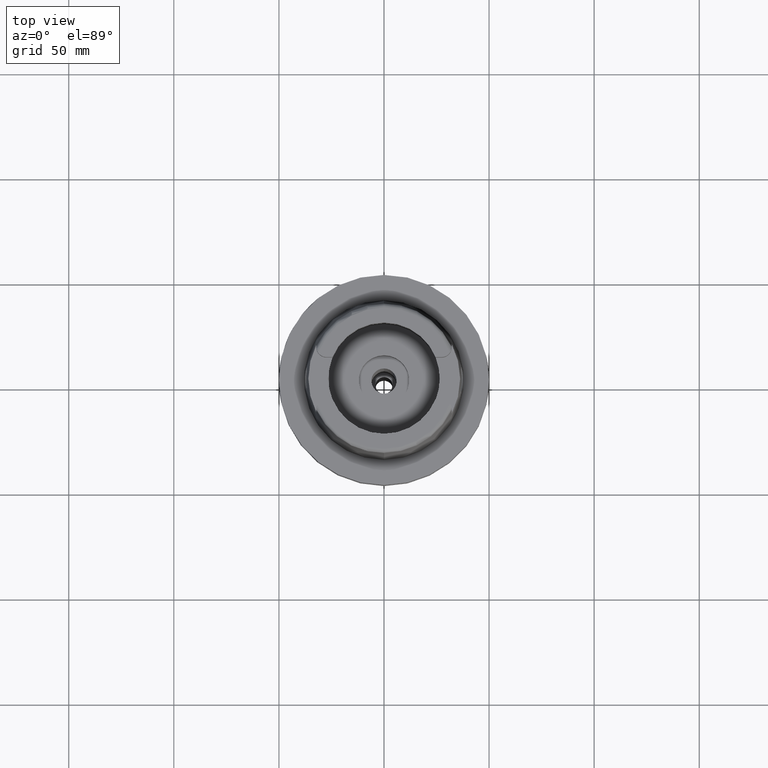
[diagram: clean part render]
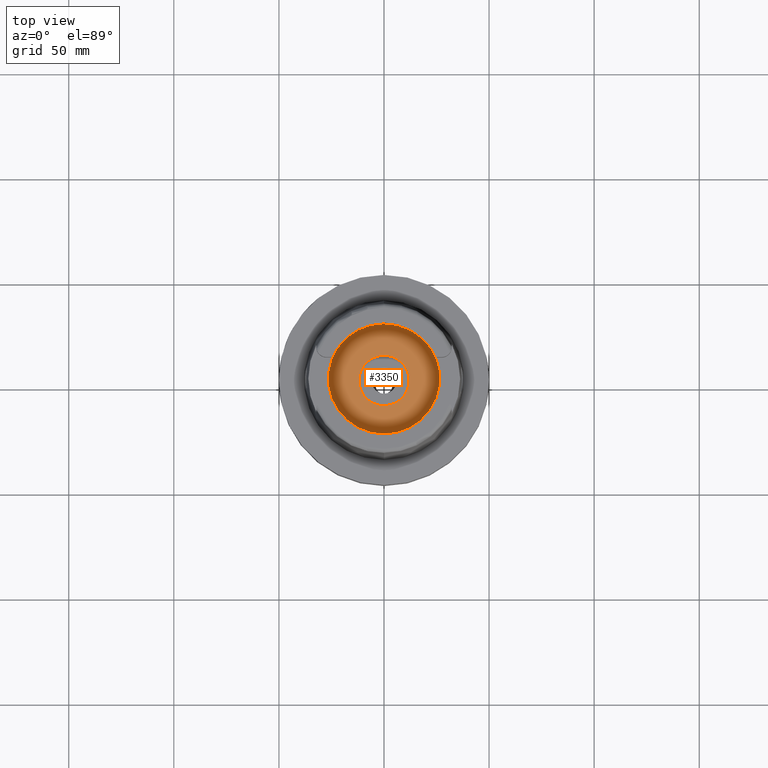
[diagram: same view with one face highlighted and labeled with its STEP entity id]
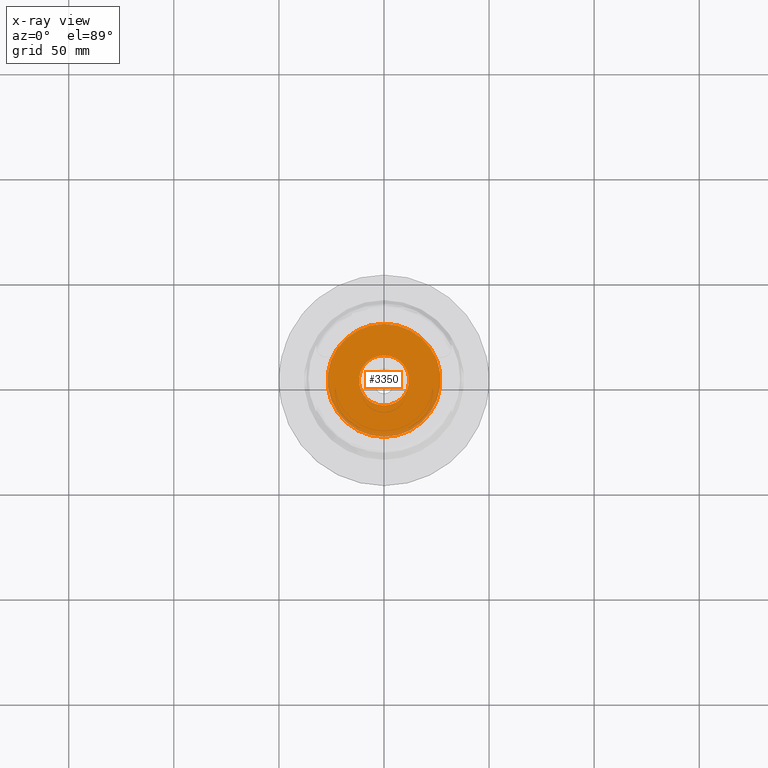
[diagram: x-ray of the same camera — body ghosted, the highlighted face saturated]
A machine part, top view. The second image highlights one B-rep face of the part: STEP entity #3350.
The next image is the same camera in x-ray: the body ghosted, the highlighted face saturated — about 5% of this face is hidden behind the body in this view.
In plain terms, the highlighted planar face has unit normal (0, 0, 1).
Its self-contained STEP definition (entity closure, byte-faithful):
#819=CARTESIAN_POINT('',(0.E0,0.E0,-1.245E1));
#820=DIRECTION('',(0.E0,0.E0,-1.E0));
#821=DIRECTION('',(0.E0,-1.E0,0.E0));
#822=AXIS2_PLACEMENT_3D('',#819,#820,#821);
#827=CARTESIAN_POINT('',(0.E0,0.E0,-1.245E1));
#828=DIRECTION('',(0.E0,0.E0,-1.E0));
#829=DIRECTION('',(0.E0,1.E0,0.E0));
#830=AXIS2_PLACEMENT_3D('',#827,#828,#829);
#835=CARTESIAN_POINT('',(0.E0,0.E0,-1.245E1));
#836=DIRECTION('',(0.E0,0.E0,1.E0));
#837=DIRECTION('',(0.E0,-1.E0,0.E0));
#838=AXIS2_PLACEMENT_3D('',#835,#836,#837);
#843=CARTESIAN_POINT('',(0.E0,0.E0,-1.245E1));
#844=DIRECTION('',(0.E0,0.E0,1.E0));
#845=DIRECTION('',(0.E0,1.E0,0.E0));
#846=AXIS2_PLACEMENT_3D('',#843,#844,#845);
#2548=CARTESIAN_POINT('',(0.E0,2.69E1,-1.245E1));
#2549=VERTEX_POINT('',#2548);
#2550=CARTESIAN_POINT('',(0.E0,-2.69E1,-1.245E1));
#2551=VERTEX_POINT('',#2550);
#2552=CARTESIAN_POINT('',(0.E0,-1.2E1,-1.245E1));
#2553=CARTESIAN_POINT('',(0.E0,1.2E1,-1.245E1));
#2554=VERTEX_POINT('',#2552);
#2555=VERTEX_POINT('',#2553);
#3335=CARTESIAN_POINT('',(0.E0,0.E0,-1.245E1));
#3336=DIRECTION('',(0.E0,0.E0,1.E0));
#3337=DIRECTION('',(0.E0,1.E0,0.E0));
#3338=AXIS2_PLACEMENT_3D('',#3335,#3336,#3337);
#3339=PLANE('',#3338);
#3340=ORIENTED_EDGE('',*,*,#3314,.T.);
#3341=ORIENTED_EDGE('',*,*,#3330,.T.);
#3342=EDGE_LOOP('',(#3340,#3341));
#3343=FACE_OUTER_BOUND('',#3342,.F.);
#3345=ORIENTED_EDGE('',*,*,#3344,.T.);
#3347=ORIENTED_EDGE('',*,*,#3346,.T.);
#3348=EDGE_LOOP('',(#3345,#3347));
#3349=FACE_BOUND('',#3348,.F.);
#823=CIRCLE('',#822,2.69E1);
#831=CIRCLE('',#830,2.69E1);
#839=CIRCLE('',#838,1.2E1);
#847=CIRCLE('',#846,1.2E1);
#3314=EDGE_CURVE('',#2551,#2549,#823,.T.);
#3330=EDGE_CURVE('',#2549,#2551,#831,.T.);
#3344=EDGE_CURVE('',#2554,#2555,#839,.T.);
#3346=EDGE_CURVE('',#2555,#2554,#847,.T.);
#3350=ADVANCED_FACE('',(#3343,#3349),#3339,.T.);